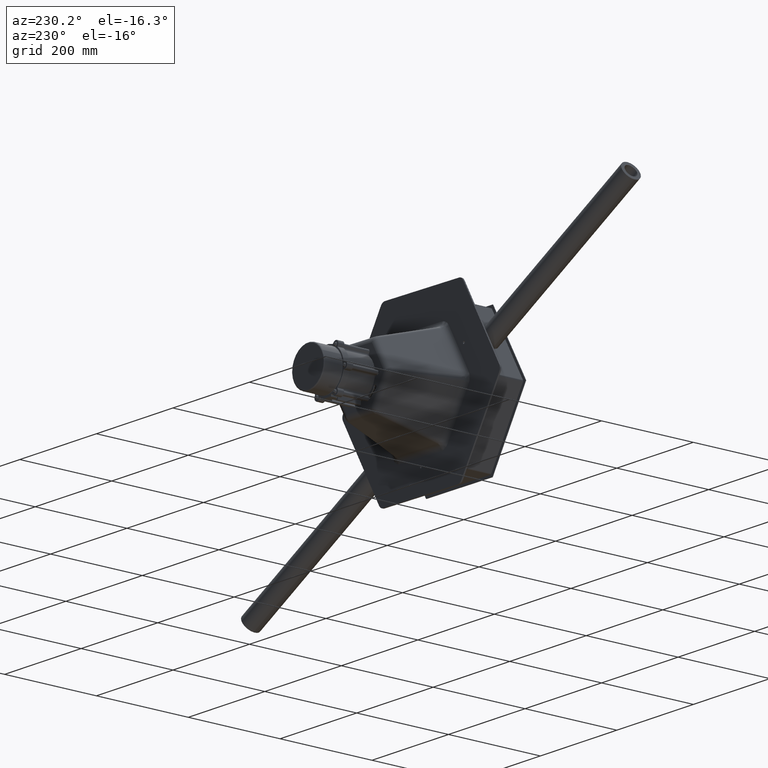
[diagram: clean part render]
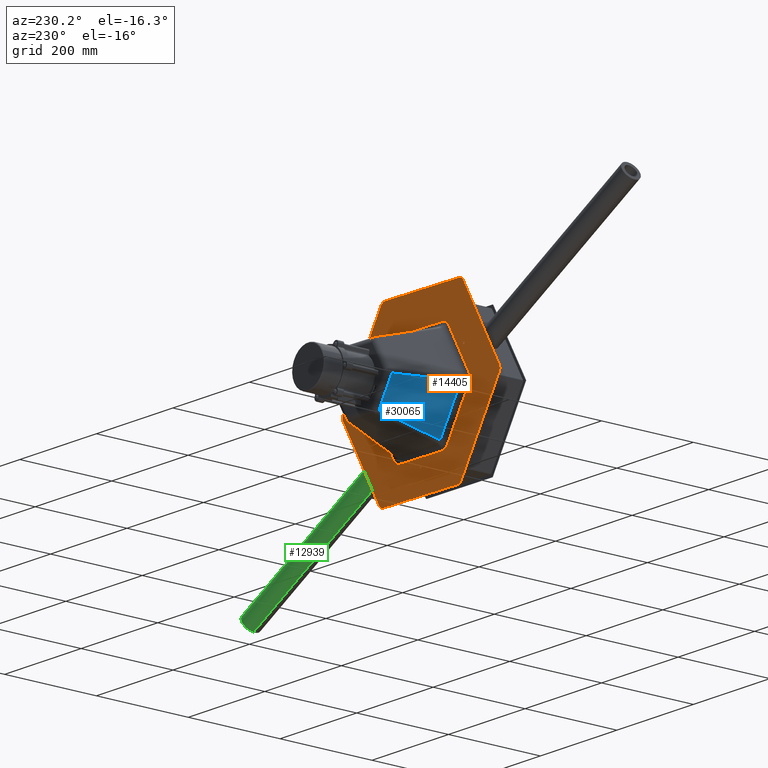
[diagram: same view with three faces highlighted in distinct colors, each labeled with its STEP entity id]
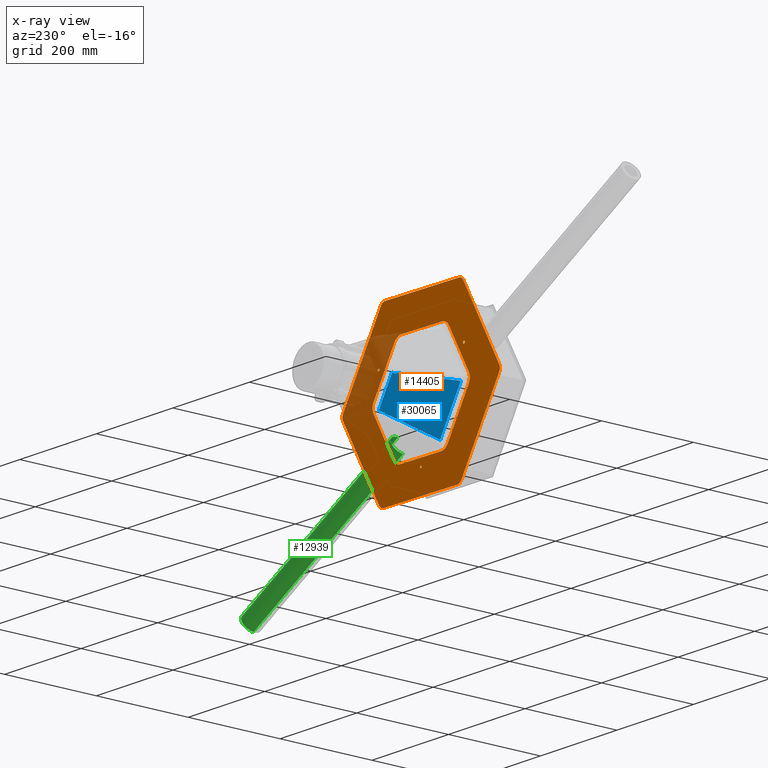
[diagram: x-ray of the same camera — body ghosted, the three highlighted faces saturated]
A machine part, auxiliary view with three faces highlighted in distinct colors.
The next image is the same camera in x-ray (body ghosted, the three faces saturated) — at least one of them is partly hidden behind the body in this view.
Their STEP definitions:

[orange] entity #14405 — the highlighted planar face has unit normal (-0, 1, -0).
#29 = CIRCLE ( 'NONE', #3622, 2.499999999999932943 ) ;
#144 = VERTEX_POINT ( 'NONE', #9268 ) ;
#264 = DIRECTION ( 'NONE',  ( 1.000000000000000000, 0.0000000000000000000, 0.0000000000000000000 ) ) ;
#392 = DIRECTION ( 'NONE',  ( 1.000000000000000000, 0.0000000000000000000, 0.0000000000000000000 ) ) ;
#502 = CARTESIAN_POINT ( 'NONE',  ( -180.0000000000001990, -103.9230484541327257, 3.000000000000002665 ) ) ;
#588 = EDGE_LOOP ( 'NONE', ( #3289, #16788, #16763, #32327, #19123, #15606, #25904, #10068, #16459, #6291, #33176, #12389, #12473, #7153, #3378, #18773, #33509, #33228 ) ) ;
#621 = DIRECTION ( 'NONE',  ( 0.8660254037844387076, -0.5000000000000001110, 7.395570986446982391E-32 ) ) ;
#765 = CIRCLE ( 'NONE', #19125, 12.00000000000001066 ) ;
#818 = VERTEX_POINT ( 'NONE', #18384 ) ;
#905 = DIRECTION ( 'NONE',  ( 1.000000000000000000, 0.0000000000000000000, 0.0000000000000000000 ) ) ;
#910 = CARTESIAN_POINT ( 'NONE',  ( 105.4923940547534897, -69.35442614070201728, 2.999999999999996003 ) ) ;
#1337 = ORIENTED_EDGE ( 'NONE', *, *, #4857, .T. ) ;
#1415 = VERTEX_POINT ( 'NONE', #16205 ) ;
#1423 = VECTOR ( 'NONE', #19962, 1000.000000000000000 ) ;
#1537 = LINE ( 'NONE', #502, #14549 ) ;
#1780 = CARTESIAN_POINT ( 'NONE',  ( -103.4783731976791330, -70.51722162468735178, 3.000000000000002665 ) ) ;
#1828 = EDGE_LOOP ( 'NONE', ( #2680, #29796 ) ) ;
#1853 = CARTESIAN_POINT ( 'NONE',  ( 109.9916431644735155, 63.50370478961835374, 3.000000000000000888 ) ) ;
#2162 =( BOUNDED_CURVE ( )  B_SPLINE_CURVE ( 3, ( #14802, #19885, #17423, #1853 ),
 .UNSPECIFIED., .F., .T. ) 
 B_SPLINE_CURVE_WITH_KNOTS ( ( 4, 4 ),
 ( 5.781736827145353530, 6.283185307179586232 ),
 .UNSPECIFIED. ) 
 CURVE ( )  GEOMETRIC_REPRESENTATION_ITEM ( )  RATIONAL_B_SPLINE_CURVE ( ( 1.000000000000000000, 0.9791553251799451907, 0.9791553251799451907, 1.000000000000000000 ) ) 
 REPRESENTATION_ITEM ( '' )  );
#2202 = CARTESIAN_POINT ( 'NONE',  ( -111.8498174117723067, -60.28525258398089903, 3.000000000000003109 ) ) ;
#2266 = PLANE ( 'NONE',  #29995 ) ;
#2326 = CARTESIAN_POINT ( 'NONE',  ( -112.8088919301162605, -56.68188008710410486, 3.000000000000003109 ) ) ;
#2538 = DIRECTION ( 'NONE',  ( 0.8660254037844387076, -0.4999999999999997224, 6.162975822039148161E-32 ) ) ;
#2680 = ORIENTED_EDGE ( 'NONE', *, *, #32297, .F. ) ;
#2764 = FACE_BOUND ( 'NONE', #6781, .T. ) ;
#2826 = CIRCLE ( 'NONE', #32260, 12.00000000000001066 ) ;
#2845 = EDGE_CURVE ( 'NONE', #17957, #12448, #19441, .T. ) ;
#2980 = VERTEX_POINT ( 'NONE', #22040 ) ;
#3050 = DIRECTION ( 'NONE',  ( -2.465190328815661892E-32, -2.209041646212159523E-31, 1.000000000000000000 ) ) ;
#3076 = CARTESIAN_POINT ( 'NONE',  ( 174.0000000000001421, -107.3871500692704046, 2.999999999999995559 ) ) ;
#3212 = CARTESIAN_POINT ( 'NONE',  ( -109.9916431644736861, 63.50370478961818321, 3.000000000000009770 ) ) ;
#3289 = ORIENTED_EDGE ( 'NONE', *, *, #4262, .T. ) ;
#3378 = ORIENTED_EDGE ( 'NONE', *, *, #16581, .T. ) ;
#3622 = AXIS2_PLACEMENT_3D ( 'NONE', #23094, #7637, #25723 ) ;
#3740 = EDGE_CURVE ( 'NONE', #23818, #26938, #25024, .T. ) ;
#3931 = CARTESIAN_POINT ( 'NONE',  ( 5.999999999999992895, -204.3819952931276305, 3.000000000000002665 ) ) ;
#4205 = EDGE_CURVE ( 'NONE', #12448, #11268, #11321, .T. ) ;
#4262 = EDGE_CURVE ( 'NONE', #33037, #26716, #21770, .T. ) ;
#4267 = ORIENTED_EDGE ( 'NONE', *, *, #21539, .F. ) ;
#4299 = CARTESIAN_POINT ( 'NONE',  ( 180.0000000000001705, 96.99484522385721164, 3.000000000000002665 ) ) ;
#4317 = VERTEX_POINT ( 'NONE', #33306 ) ;
#4339 = CARTESIAN_POINT ( 'NONE',  ( -128.5606159927934016, -0.9905632959438664953, 2.999999999999995559 ) ) ;
#4352 = VECTOR ( 'NONE', #8772, 1000.000000000000114 ) ;
#4449 = VERTEX_POINT ( 'NONE', #31303 ) ;
#4485 = CARTESIAN_POINT ( 'NONE',  ( -180.0000000000001990, 96.99484522385718321, 3.000000000000002665 ) ) ;
#4649 = CARTESIAN_POINT ( 'NONE',  ( -126.0606159927934726, -0.9905632959438662732, 2.999999999999995559 ) ) ;
#4857 = EDGE_CURVE ( 'NONE', #16529, #11893, #29820, .T. ) ;
#5054 = ORIENTED_EDGE ( 'NONE', *, *, #2845, .T. ) ;
#5391 = ORIENTED_EDGE ( 'NONE', *, *, #5571, .T. ) ;
#5463 = CARTESIAN_POINT ( 'NONE',  ( -10.57531631285927531, -124.1548265256773078, 3.000000000000002665 ) ) ;
#5484 = CARTESIAN_POINT ( 'NONE',  ( -131.0606159927933163, -0.9905632959438664953, 2.999999999999995559 ) ) ;
#5571 = EDGE_CURVE ( 'NONE', #11268, #6002, #26947, .T. ) ;
#5603 = DIRECTION ( 'NONE',  ( -2.465190328815661892E-32, -2.209041646212159523E-31, 1.000000000000000000 ) ) ;
#5665 = EDGE_CURVE ( 'NONE', #15814, #10157, #24514, .T. ) ;
#5696 = CARTESIAN_POINT ( 'NONE',  ( 9.330518732437003138, -124.8735107438206029, 3.000000000000002665 ) ) ;
#5746 = CARTESIAN_POINT ( 'NONE',  ( -112.8088919301162321, 52.91892068284658279, 3.000000000000002665 ) ) ;
#5759 = CARTESIAN_POINT ( 'NONE',  ( 6.000000000000039080, 204.3819952931276021, 3.000000000000002665 ) ) ;
#5883 = ORIENTED_EDGE ( 'NONE', *, *, #23514, .T. ) ;
#6002 = VERTEX_POINT ( 'NONE', #4299 ) ;
#6013 = CARTESIAN_POINT ( 'NONE',  ( -109.9916431644736434, -63.50370478961819742, 3.000000000000011546 ) ) ;
#6017 = EDGE_CURVE ( 'NONE', #14531, #27240, #13188, .T. ) ;
#6291 = ORIENTED_EDGE ( 'NONE', *, *, #28834, .T. ) ;
#6455 = LINE ( 'NONE', #18828, #33099 ) ;
#6459 = CARTESIAN_POINT ( 'NONE',  ( 103.4783731976790477, 70.51722162468750810, 3.000000000000009770 ) ) ;
#6604 = LINE ( 'NONE', #13960, #27231 ) ;
#6781 = EDGE_LOOP ( 'NONE', ( #4267, #33470 ) ) ;
#6786 = ORIENTED_EDGE ( 'NONE', *, *, #33357, .T. ) ;
#6916 = ORIENTED_EDGE ( 'NONE', *, *, #27424, .T. ) ;
#6969 = DIRECTION ( 'NONE',  ( 1.000000000000000000, 0.0000000000000000000, 0.0000000000000000000 ) ) ;
#7066 = DIRECTION ( 'NONE',  ( -0.8660254037844387076, 0.4999999999999998335, -4.930380657631319952E-32 ) ) ;
#7153 = ORIENTED_EDGE ( 'NONE', *, *, #30886, .T. ) ;
#7164 = CARTESIAN_POINT ( 'NONE',  ( -105.4923940547535466, 69.35442614070203149, 3.000000000000002665 ) ) ;
#7253 = VECTOR ( 'NONE', #7066, 1000.000000000000114 ) ;
#7302 = EDGE_CURVE ( 'NONE', #26938, #33037, #16199, .T. ) ;
#7637 = DIRECTION ( 'NONE',  ( -2.465190328815661892E-32, -2.209041646212159523E-31, 1.000000000000000000 ) ) ;
#7660 = VERTEX_POINT ( 'NONE', #18220 ) ;
#7722 = LINE ( 'NONE', #12651, #19036 ) ;
#8244 = CARTESIAN_POINT ( 'NONE',  ( 109.9916431644735155, 63.50370478961835374, 3.000000000000000888 ) ) ;
#8323 = VERTEX_POINT ( 'NONE', #13877 ) ;
#8393 = EDGE_LOOP ( 'NONE', ( #1337, #19399, #12047, #24524, #19618, #6916, #5883, #6786, #5054, #29671, #5391, #14122 ) ) ;
#8527 = EDGE_CURVE ( 'NONE', #27240, #14531, #9047, .T. ) ;
#8624 = CARTESIAN_POINT ( 'NONE',  ( 2.496306811062403939E-14, 127.0074095792363096, 3.000000000000000888 ) ) ;
#8663 = AXIS2_PLACEMENT_3D ( 'NONE', #21063, #5603, #23659 ) ;
#8743 = CARTESIAN_POINT ( 'NONE',  ( 10.57531631285926998, 124.1548265256773220, 3.000000000000002665 ) ) ;
#8744 = CARTESIAN_POINT ( 'NONE',  ( 109.9916431644735724, -63.50370478961822585, 2.999999999999999112 ) ) ;
#8772 = DIRECTION ( 'NONE',  ( 0.8660254037844388186, 0.4999999999999997224, -1.479114197289396040E-31 ) ) ;
#8831 = AXIS2_PLACEMENT_3D ( 'NONE', #15254, #14899, #14564 ) ;
#9045 = CARTESIAN_POINT ( 'NONE',  ( 111.8498174117721646, 60.28525258398108377, 2.999999999999995559 ) ) ;
#9047 = CIRCLE ( 'NONE', #21397, 2.499999999999919176 ) ;
#9268 = CARTESIAN_POINT ( 'NONE',  ( -180.0000000000001421, -96.99484522385715479, 3.000000000000009770 ) ) ;
#9377 = EDGE_CURVE ( 'NONE', #9877, #4317, #27863, .T. ) ;
#9631 = EDGE_CURVE ( 'NONE', #818, #8323, #13445, .T. ) ;
#9723 = CARTESIAN_POINT ( 'NONE',  ( -108.1334689171750654, 66.72215699525548871, 3.000000000000002665 ) ) ;
#9877 = VERTEX_POINT ( 'NONE', #12868 ) ;
#9881 = CARTESIAN_POINT ( 'NONE',  ( 66.99258023428303943, -110.8974878807649844, 3.000000000000002665 ) ) ;
#10068 = ORIENTED_EDGE ( 'NONE', *, *, #9377, .T. ) ;
#10092 = EDGE_CURVE ( 'NONE', #31351, #27385, #6455, .T. ) ;
#10157 = VERTEX_POINT ( 'NONE', #11949 ) ;
#10195 = DIRECTION ( 'NONE',  ( 3.697785493223489554E-32, -2.209041646212159523E-31, 1.000000000000000000 ) ) ;
#10326 = CARTESIAN_POINT ( 'NONE',  ( -6.000000000000127010, -204.3819952931277442, 3.000000000000002665 ) ) ;
#10340 = CARTESIAN_POINT ( 'NONE',  ( 63.69974159824990068, 111.8859771665177902, 3.000000000000002665 ) ) ;
#10514 = CARTESIAN_POINT ( 'NONE',  ( 180.0000000000001705, -103.9230484541326121, 2.999999999999995559 ) ) ;
#10540 = VECTOR ( 'NONE', #25072, 1000.000000000000000 ) ;
#10592 = EDGE_CURVE ( 'NONE', #4317, #17183, #27888, .T. ) ;
#11253 = CARTESIAN_POINT ( 'NONE',  ( -7.316497875362687253, -126.0363062278060369, 2.999999999999995559 ) ) ;
#11268 = VERTEX_POINT ( 'NONE', #19942 ) ;
#11321 = CIRCLE ( 'NONE', #8831, 12.00000000000001066 ) ;
#11614 = CIRCLE ( 'NONE', #32516, 2.499999999999932943 ) ;
#11728 = CARTESIAN_POINT ( 'NONE',  ( 7.316497875362695247, 126.0363062278060937, 2.999999999999995559 ) ) ;
#11893 = VERTEX_POINT ( 'NONE', #5759 ) ;
#11949 = CARTESIAN_POINT ( 'NONE',  ( 61.19974159824987225, 111.8859771665177902, 3.000000000000002665 ) ) ;
#12047 = ORIENTED_EDGE ( 'NONE', *, *, #10092, .T. ) ;
#12152 = DIRECTION ( 'NONE',  ( -2.465190328815661892E-32, -2.209041646212159523E-31, 1.000000000000000000 ) ) ;
#12389 = ORIENTED_EDGE ( 'NONE', *, *, #26727, .T. ) ;
#12448 = VERTEX_POINT ( 'NONE', #3076 ) ;
#12473 = ORIENTED_EDGE ( 'NONE', *, *, #25925, .T. ) ;
#12477 = EDGE_CURVE ( 'NONE', #7660, #16814, #17947, .T. ) ;
#12651 = CARTESIAN_POINT ( 'NONE',  ( -180.0000000000001990, 103.9230484541326689, 3.000000000000002665 ) ) ;
#12868 = CARTESIAN_POINT ( 'NONE',  ( 10.57531631285922025, -124.1548265256772225, 3.000000000000002665 ) ) ;
#12911 = DIRECTION ( 'NONE',  ( 1.000000000000000000, 0.0000000000000000000, 0.0000000000000000000 ) ) ;
#13100 = CARTESIAN_POINT ( 'NONE',  ( 112.8088919301160473, 52.91892068284673911, 3.000000000000002665 ) ) ;
#13147 = CARTESIAN_POINT ( 'NONE',  ( -1.701094551284991471E-14, -127.0074095792362527, 3.000000000000000888 ) ) ;
#13166 = CARTESIAN_POINT ( 'NONE',  ( -174.0000000000002274, 107.3871500692704188, 3.000000000000009770 ) ) ;
#13188 = CIRCLE ( 'NONE', #31976, 2.499999999999919176 ) ;
#13444 = DIRECTION ( 'NONE',  ( -2.465190328815661892E-32, -2.209041646212159523E-31, 1.000000000000000000 ) ) ;
#13445 =( BOUNDED_CURVE ( )  B_SPLINE_CURVE ( 3, ( #13891, #29364, #910, #19079 ),
 .UNSPECIFIED., .F., .F. ) 
 B_SPLINE_CURVE_WITH_KNOTS ( ( 4, 4 ),
 ( 0.0000000000000000000, 0.5014484800342289272 ),
 .UNSPECIFIED. ) 
 CURVE ( )  GEOMETRIC_REPRESENTATION_ITEM ( )  RATIONAL_B_SPLINE_CURVE ( ( 1.000000000000000000, 0.9791553251799456348, 0.9791553251799456348, 1.000000000000000000 ) ) 
 REPRESENTATION_ITEM ( '' )  );
#13649 = CARTESIAN_POINT ( 'NONE',  ( -109.9916431644736434, -63.50370478961819742, 3.000000000000011546 ) ) ;
#13864 = VECTOR ( 'NONE', #18367, 1000.000000000000227 ) ;
#13877 = CARTESIAN_POINT ( 'NONE',  ( 102.2335756172569177, -71.23590584283073213, 3.000000000000002665 ) ) ;
#13891 = CARTESIAN_POINT ( 'NONE',  ( 109.9916431644735724, -63.50370478961822585, 2.999999999999999112 ) ) ;
#13947 = EDGE_CURVE ( 'NONE', #30623, #144, #7722, .T. ) ;
#13960 = CARTESIAN_POINT ( 'NONE',  ( -112.8088919301162321, 54.35628911913330796, 3.000000000000002665 ) ) ;
#14122 = ORIENTED_EDGE ( 'NONE', *, *, #20172, .T. ) ;
#14204 = CARTESIAN_POINT ( 'NONE',  ( 112.8088919301160473, 52.91892068284673911, 3.000000000000002665 ) ) ;
#14405 = ADVANCED_FACE ( 'NONE', ( #29508, #16584, #2764, #22624, #15777 ), #2266, .T. ) ;
#14447 =( BOUNDED_CURVE ( )  B_SPLINE_CURVE ( 3, ( #33310, #2202, #2326, #20455 ),
 .UNSPECIFIED., .F., .F. ) 
 B_SPLINE_CURVE_WITH_KNOTS ( ( 4, 4 ),
 ( 0.0000000000000000000, 0.5014484800342327020 ),
 .UNSPECIFIED. ) 
 CURVE ( )  GEOMETRIC_REPRESENTATION_ITEM ( )  RATIONAL_B_SPLINE_CURVE ( ( 1.000000000000000000, 0.9791553251799451907, 0.9791553251799451907, 1.000000000000000000 ) ) 
 REPRESENTATION_ITEM ( '' )  );
#14531 = VERTEX_POINT ( 'NONE', #5484 ) ;
#14549 = VECTOR ( 'NONE', #621, 999.9999999999998863 ) ;
#14564 = DIRECTION ( 'NONE',  ( 1.000000000000000000, 0.0000000000000000000, 0.0000000000000000000 ) ) ;
#14659 = DIRECTION ( 'NONE',  ( -2.465190328815661892E-32, -2.209041646212159523E-31, 1.000000000000000000 ) ) ;
#14802 = CARTESIAN_POINT ( 'NONE',  ( 102.2335756172567756, 71.23590584283090266, 3.000000000000009770 ) ) ;
#14898 = VECTOR ( 'NONE', #2538, 1000.000000000000114 ) ;
#14899 = DIRECTION ( 'NONE',  ( -2.465190328815661892E-32, -2.209041646212159523E-31, 1.000000000000000000 ) ) ;
#14922 = VERTEX_POINT ( 'NONE', #22726 ) ;
#15156 = CARTESIAN_POINT ( 'NONE',  ( 102.2335756172567756, 71.23590584283090266, 3.000000000000009770 ) ) ;
#15254 = CARTESIAN_POINT ( 'NONE',  ( 168.0000000000001990, -96.99484522385712637, 2.999999999999995559 ) ) ;
#15539 = VERTEX_POINT ( 'NONE', #9881 ) ;
#15606 = ORIENTED_EDGE ( 'NONE', *, *, #9631, .T. ) ;
#15632 = VERTEX_POINT ( 'NONE', #10326 ) ;
#15761 = VERTEX_POINT ( 'NONE', #8244 ) ;
#15777 = FACE_OUTER_BOUND ( 'NONE', #8393, .T. ) ;
#15814 = VERTEX_POINT ( 'NONE', #19186 ) ;
#15851 = DIRECTION ( 'NONE',  ( -2.465190328815661892E-32, -2.209041646212159523E-31, 1.000000000000000000 ) ) ;
#15982 = DIRECTION ( 'NONE',  ( -2.465190328815661892E-32, -2.209041646212159523E-31, 1.000000000000000000 ) ) ;
#16199 =( BOUNDED_CURVE ( )  B_SPLINE_CURVE ( 3, ( #32105, #21932, #11728, #29738 ),
 .UNSPECIFIED., .F., .T. ) 
 B_SPLINE_CURVE_WITH_KNOTS ( ( 4, 4 ),
 ( 5.252536211965179235E-32, 0.5014484800342327020 ),
 .UNSPECIFIED. ) 
 CURVE ( )  GEOMETRIC_REPRESENTATION_ITEM ( )  RATIONAL_B_SPLINE_CURVE ( ( 1.000000000000000000, 0.9791553251799451907, 0.9791553251799451907, 1.000000000000000000 ) ) 
 REPRESENTATION_ITEM ( '' )  );
#16205 = CARTESIAN_POINT ( 'NONE',  ( 112.8088919301161752, -52.91892068284654016, 3.000000000000002665 ) ) ;
#16281 = EDGE_CURVE ( 'NONE', #11893, #31351, #21668, .T. ) ;
#16400 = CARTESIAN_POINT ( 'NONE',  ( 112.8088919301161752, -52.91892068284654016, 3.000000000000002665 ) ) ;
#16459 = ORIENTED_EDGE ( 'NONE', *, *, #10592, .T. ) ;
#16491 = DIRECTION ( 'NONE',  ( -2.465190328815661892E-32, -2.209041646212159523E-31, 1.000000000000000000 ) ) ;
#16505 = CARTESIAN_POINT ( 'NONE',  ( -109.9916431644736861, 63.50370478961818321, 3.000000000000009770 ) ) ;
#16529 = VERTEX_POINT ( 'NONE', #24913 ) ;
#16581 = EDGE_CURVE ( 'NONE', #17890, #4449, #24525, .T. ) ;
#16584 = FACE_BOUND ( 'NONE', #17284, .T. ) ;
#16763 = ORIENTED_EDGE ( 'NONE', *, *, #28683, .T. ) ;
#16788 = ORIENTED_EDGE ( 'NONE', *, *, #23866, .T. ) ;
#16814 = VERTEX_POINT ( 'NONE', #6013 ) ;
#17183 = VERTEX_POINT ( 'NONE', #5463 ) ;
#17284 = EDGE_LOOP ( 'NONE', ( #26548, #30846 ) ) ;
#17354 = LINE ( 'NONE', #32396, #10540 ) ;
#17423 = CARTESIAN_POINT ( 'NONE',  ( 108.1334689171748948, 66.72215699525563082, 2.999999999999995559 ) ) ;
#17890 = VERTEX_POINT ( 'NONE', #16505 ) ;
#17947 =( BOUNDED_CURVE ( )  B_SPLINE_CURVE ( 3, ( #31580, #21299, #29106, #13649 ),
 .UNSPECIFIED., .F., .F. ) 
 B_SPLINE_CURVE_WITH_KNOTS ( ( 4, 4 ),
 ( 5.781736827145349089, 6.283185307179586232 ),
 .UNSPECIFIED. ) 
 CURVE ( )  GEOMETRIC_REPRESENTATION_ITEM ( )  RATIONAL_B_SPLINE_CURVE ( ( 1.000000000000000000, 0.9791553251799447466, 0.9791553251799447466, 1.000000000000000000 ) ) 
 REPRESENTATION_ITEM ( '' )  );
#17957 = VERTEX_POINT ( 'NONE', #3931 ) ;
#18166 = CARTESIAN_POINT ( 'NONE',  ( -6.000000000000012434, 204.3819952931277157, 2.999999999999995559 ) ) ;
#18220 = CARTESIAN_POINT ( 'NONE',  ( -102.2335756172568608, -71.23590584283076055, 3.000000000000002665 ) ) ;
#18367 = DIRECTION ( 'NONE',  ( -0.8660254037844385966, -0.4999999999999998890, 1.479114197289395821E-31 ) ) ;
#18384 = CARTESIAN_POINT ( 'NONE',  ( 109.9916431644735724, -63.50370478961822585, 2.999999999999999112 ) ) ;
#18599 = CARTESIAN_POINT ( 'NONE',  ( 63.69974159824990068, 111.8859771665177902, 3.000000000000002665 ) ) ;
#18750 = CARTESIAN_POINT ( 'NONE',  ( -111.8498174117723210, 60.28525258398091324, 3.000000000000002665 ) ) ;
#18773 = ORIENTED_EDGE ( 'NONE', *, *, #24791, .T. ) ;
#18828 = CARTESIAN_POINT ( 'NONE',  ( 1.214306433183764966E-14, 207.8460969082653946, 3.000000000000002665 ) ) ;
#18875 = EDGE_CURVE ( 'NONE', #8323, #9877, #20713, .T. ) ;
#19036 = VECTOR ( 'NONE', #20419, 1000.000000000000000 ) ;
#19079 = CARTESIAN_POINT ( 'NONE',  ( 102.2335756172569177, -71.23590584283073213, 3.000000000000002665 ) ) ;
#19123 = ORIENTED_EDGE ( 'NONE', *, *, #19482, .T. ) ;
#19125 = AXIS2_PLACEMENT_3D ( 'NONE', #30133, #14659, #32727 ) ;
#19186 = CARTESIAN_POINT ( 'NONE',  ( 66.19974159824991489, 111.8859771665177902, 3.000000000000002665 ) ) ;
#19266 = CARTESIAN_POINT ( 'NONE',  ( 109.9916431644735155, 63.50370478961835374, 3.000000000000000888 ) ) ;
#19328 = EDGE_CURVE ( 'NONE', #15539, #14922, #11614, .T. ) ;
#19399 = ORIENTED_EDGE ( 'NONE', *, *, #16281, .T. ) ;
#19441 = LINE ( 'NONE', #28075, #25517 ) ;
#19482 = EDGE_CURVE ( 'NONE', #1415, #818, #25519, .T. ) ;
#19618 = ORIENTED_EDGE ( 'NONE', *, *, #13947, .T. ) ;
#19778 = CARTESIAN_POINT ( 'NONE',  ( -10.57531631285925400, 124.1548265256772510, 2.999999999999995559 ) ) ;
#19885 = CARTESIAN_POINT ( 'NONE',  ( 105.4923940547533903, 69.35442614070217360, 2.999999999999995559 ) ) ;
#19942 = CARTESIAN_POINT ( 'NONE',  ( 180.0000000000001705, -96.99484522385715479, 3.000000000000002665 ) ) ;
#19962 = DIRECTION ( 'NONE',  ( -0.8660254037844385966, 0.5000000000000001110, -8.628166150854811148E-32 ) ) ;
#20172 = EDGE_CURVE ( 'NONE', #6002, #16529, #30895, .T. ) ;
#20194 = CARTESIAN_POINT ( 'NONE',  ( 180.0000000000001705, 103.9230484541326973, 2.999999999999995559 ) ) ;
#20379 = VERTEX_POINT ( 'NONE', #13100 ) ;
#20419 = DIRECTION ( 'NONE',  ( 0.0000000000000000000, -1.000000000000000000, 2.210967576156545446E-31 ) ) ;
#20455 = CARTESIAN_POINT ( 'NONE',  ( -112.8088919301161894, -52.91892068284656858, 3.000000000000002665 ) ) ;
#20713 = LINE ( 'NONE', #5696, #13864 ) ;
#20862 = VECTOR ( 'NONE', #31112, 1000.000000000000000 ) ;
#21063 = CARTESIAN_POINT ( 'NONE',  ( 8.673617379884035472E-15, 193.9896904477144233, 3.000000000000002665 ) ) ;
#21160 = DIRECTION ( 'NONE',  ( 1.000000000000000000, 0.0000000000000000000, 0.0000000000000000000 ) ) ;
#21294 = AXIS2_PLACEMENT_3D ( 'NONE', #31429, #15982, #392 ) ;
#21299 = CARTESIAN_POINT ( 'NONE',  ( -105.4923940547535040, -69.35442614070204570, 3.000000000000002665 ) ) ;
#21397 = AXIS2_PLACEMENT_3D ( 'NONE', #4339, #22433, #6969 ) ;
#21468 = CARTESIAN_POINT ( 'NONE',  ( -3.716348494597264462, -127.0074095792362527, 2.999999999999995559 ) ) ;
#21539 = EDGE_CURVE ( 'NONE', #10157, #15814, #22314, .T. ) ;
#21668 = CIRCLE ( 'NONE', #8663, 12.00000000000001066 ) ;
#21770 = LINE ( 'NONE', #6459, #14898 ) ;
#21875 = CARTESIAN_POINT ( 'NONE',  ( -112.8088919301162321, 52.91892068284658279, 3.000000000000002665 ) ) ;
#21932 = CARTESIAN_POINT ( 'NONE',  ( 3.716348494597272900, 127.0074095792363096, 2.999999999999995559 ) ) ;
#22040 = CARTESIAN_POINT ( 'NONE',  ( -174.0000000000001137, -107.3871500692704615, 3.000000000000002665 ) ) ;
#22314 = CIRCLE ( 'NONE', #27841, 2.500000000000015987 ) ;
#22433 = DIRECTION ( 'NONE',  ( -2.465190328815661892E-32, -2.209041646212159523E-31, 1.000000000000000000 ) ) ;
#22624 = FACE_BOUND ( 'NONE', #588, .T. ) ;
#22726 = CARTESIAN_POINT ( 'NONE',  ( 61.99258023428317443, -110.8974878807649844, 3.000000000000002665 ) ) ;
#23094 = CARTESIAN_POINT ( 'NONE',  ( 64.49258023428309627, -110.8974878807649844, 3.000000000000002665 ) ) ;
#23391 = CARTESIAN_POINT ( 'NONE',  ( 10.57531631285922025, -124.1548265256772225, 3.000000000000002665 ) ) ;
#23514 = EDGE_CURVE ( 'NONE', #2980, #15632, #1537, .T. ) ;
#23659 = DIRECTION ( 'NONE',  ( 1.000000000000000000, 0.0000000000000000000, 0.0000000000000000000 ) ) ;
#23818 = VERTEX_POINT ( 'NONE', #19778 ) ;
#23866 = EDGE_CURVE ( 'NONE', #26716, #15761, #2162, .T. ) ;
#24085 = CARTESIAN_POINT ( 'NONE',  ( 2.496306811062403939E-14, 127.0074095792363096, 3.000000000000000888 ) ) ;
#24184 = CARTESIAN_POINT ( 'NONE',  ( 111.8498174117722357, -60.28525258398092035, 2.999999999999995559 ) ) ;
#24212 = CARTESIAN_POINT ( 'NONE',  ( -3.716348494597244922, 127.0074095792363096, 2.999999999999995559 ) ) ;
#24303 = EDGE_CURVE ( 'NONE', #20379, #1415, #17354, .T. ) ;
#24514 = CIRCLE ( 'NONE', #29172, 2.500000000000015987 ) ;
#24524 = ORIENTED_EDGE ( 'NONE', *, *, #27127, .T. ) ;
#24525 =( BOUNDED_CURVE ( )  B_SPLINE_CURVE ( 3, ( #32884, #9723, #7164, #25242 ),
 .UNSPECIFIED., .F., .T. ) 
 B_SPLINE_CURVE_WITH_KNOTS ( ( 4, 4 ),
 ( 7.885106708985473010E-17, 0.5014484800342339232 ),
 .UNSPECIFIED. ) 
 CURVE ( )  GEOMETRIC_REPRESENTATION_ITEM ( )  RATIONAL_B_SPLINE_CURVE ( ( 1.000000000000000000, 0.9791553251799449686, 0.9791553251799449686, 1.000000000000000000 ) ) 
 REPRESENTATION_ITEM ( '' )  );
#24555 = CARTESIAN_POINT ( 'NONE',  ( -7.316497875362698800, 126.0363062278060369, 2.999999999999995559 ) ) ;
#24791 = EDGE_CURVE ( 'NONE', #4449, #23818, #25016, .T. ) ;
#24913 = CARTESIAN_POINT ( 'NONE',  ( 174.0000000000001421, 107.3871500692704473, 2.999999999999995559 ) ) ;
#25016 = LINE ( 'NONE', #26827, #4352 ) ;
#25024 =( BOUNDED_CURVE ( )  B_SPLINE_CURVE ( 3, ( #25998, #24555, #24212, #24085 ),
 .UNSPECIFIED., .F., .T. ) 
 B_SPLINE_CURVE_WITH_KNOTS ( ( 4, 4 ),
 ( 5.781736827145349977, 6.283185307179586232 ),
 .UNSPECIFIED. ) 
 CURVE ( )  GEOMETRIC_REPRESENTATION_ITEM ( )  RATIONAL_B_SPLINE_CURVE ( ( 1.000000000000000000, 0.9791553251799448576, 0.9791553251799448576, 1.000000000000000000 ) ) 
 REPRESENTATION_ITEM ( '' )  );
#25072 = DIRECTION ( 'NONE',  ( 9.471590178833358847E-16, -1.000000000000000000, 2.039559811106081017E-31 ) ) ;
#25242 = CARTESIAN_POINT ( 'NONE',  ( -102.2335756172569603, 71.23590584283076055, 2.999999999999995559 ) ) ;
#25517 = VECTOR ( 'NONE', #27238, 1000.000000000000000 ) ;
#25519 =( BOUNDED_CURVE ( )  B_SPLINE_CURVE ( 3, ( #16400, #26691, #24184, #8744 ),
 .UNSPECIFIED., .F., .T. ) 
 B_SPLINE_CURVE_WITH_KNOTS ( ( 4, 4 ),
 ( 5.781736827145348201, 6.283185307179586232 ),
 .UNSPECIFIED. ) 
 CURVE ( )  GEOMETRIC_REPRESENTATION_ITEM ( )  RATIONAL_B_SPLINE_CURVE ( ( 1.000000000000000000, 0.9791553251799447466, 0.9791553251799447466, 1.000000000000000000 ) ) 
 REPRESENTATION_ITEM ( '' )  );
#25610 = CARTESIAN_POINT ( 'NONE',  ( 0.0000000000000000000, 0.0000000000000000000, 3.000000000000002665 ) ) ;
#25723 = DIRECTION ( 'NONE',  ( 1.000000000000000000, 0.0000000000000000000, 0.0000000000000000000 ) ) ;
#25904 = ORIENTED_EDGE ( 'NONE', *, *, #18875, .T. ) ;
#25925 = EDGE_CURVE ( 'NONE', #32573, #31025, #6604, .T. ) ;
#25998 = CARTESIAN_POINT ( 'NONE',  ( -10.57531631285925400, 124.1548265256772510, 2.999999999999995559 ) ) ;
#26015 = CARTESIAN_POINT ( 'NONE',  ( 7.316497875362669490, -126.0363062278060085, 2.999999999999995559 ) ) ;
#26264 = LINE ( 'NONE', #1780, #7253 ) ;
#26548 = ORIENTED_EDGE ( 'NONE', *, *, #6017, .F. ) ;
#26635 = DIRECTION ( 'NONE',  ( -0.8660254037844385966, -0.5000000000000001110, 1.848892746611744448E-31 ) ) ;
#26691 = CARTESIAN_POINT ( 'NONE',  ( 112.8088919301161610, -56.68188008710409065, 2.999999999999995559 ) ) ;
#26716 = VERTEX_POINT ( 'NONE', #15156 ) ;
#26727 = EDGE_CURVE ( 'NONE', #16814, #32573, #14447, .T. ) ;
#26827 = CARTESIAN_POINT ( 'NONE',  ( -9.330518732437006690, 124.8735107438206740, 2.999999999999995559 ) ) ;
#26938 = VERTEX_POINT ( 'NONE', #8624 ) ;
#26947 = LINE ( 'NONE', #10514, #20862 ) ;
#27127 = EDGE_CURVE ( 'NONE', #27385, #30623, #765, .T. ) ;
#27231 = VECTOR ( 'NONE', #29448, 1000.000000000000000 ) ;
#27238 = DIRECTION ( 'NONE',  ( 0.8660254037844385966, 0.5000000000000001110, -1.479114197289395821E-31 ) ) ;
#27240 = VERTEX_POINT ( 'NONE', #4649 ) ;
#27385 = VERTEX_POINT ( 'NONE', #13166 ) ;
#27424 = EDGE_CURVE ( 'NONE', #144, #2980, #29928, .T. ) ;
#27607 = CARTESIAN_POINT ( 'NONE',  ( -128.5606159927934016, -0.9905632959438664953, 2.999999999999995559 ) ) ;
#27841 = AXIS2_PLACEMENT_3D ( 'NONE', #10340, #28371, #12911 ) ;
#27863 =( BOUNDED_CURVE ( )  B_SPLINE_CURVE ( 3, ( #23391, #26015, #28617, #13147 ),
 .UNSPECIFIED., .F., .F. ) 
 B_SPLINE_CURVE_WITH_KNOTS ( ( 4, 4 ),
 ( 5.781736827145352642, 6.283185307179586232 ),
 .UNSPECIFIED. ) 
 CURVE ( )  GEOMETRIC_REPRESENTATION_ITEM ( )  RATIONAL_B_SPLINE_CURVE ( ( 1.000000000000000000, 0.9791553251799449686, 0.9791553251799449686, 1.000000000000000000 ) ) 
 REPRESENTATION_ITEM ( '' )  );
#27888 =( BOUNDED_CURVE ( )  B_SPLINE_CURVE ( 3, ( #29059, #21468, #11253, #29282 ),
 .UNSPECIFIED., .F., .F. ) 
 B_SPLINE_CURVE_WITH_KNOTS ( ( 4, 4 ),
 ( 1.400676323190714098E-31, 0.5014484800342327020 ),
 .UNSPECIFIED. ) 
 CURVE ( )  GEOMETRIC_REPRESENTATION_ITEM ( )  RATIONAL_B_SPLINE_CURVE ( ( 1.000000000000000000, 0.9791553251799451907, 0.9791553251799451907, 1.000000000000000000 ) ) 
 REPRESENTATION_ITEM ( '' )  );
#28075 = CARTESIAN_POINT ( 'NONE',  ( -3.469446951953614189E-14, -207.8460969082654231, 3.000000000000002665 ) ) ;
#28222 = DIRECTION ( 'NONE',  ( 1.000000000000000000, 0.0000000000000000000, -3.697785493223489554E-32 ) ) ;
#28371 = DIRECTION ( 'NONE',  ( -2.465190328815661892E-32, -2.209041646212159523E-31, 1.000000000000000000 ) ) ;
#28617 = CARTESIAN_POINT ( 'NONE',  ( 3.716348494597233820, -127.0074095792362527, 2.999999999999995559 ) ) ;
#28683 = EDGE_CURVE ( 'NONE', #15761, #20379, #33055, .T. ) ;
#28834 = EDGE_CURVE ( 'NONE', #17183, #7660, #26264, .T. ) ;
#28894 = CARTESIAN_POINT ( 'NONE',  ( -1.734723475976807094E-14, -193.9896904477143948, 3.000000000000009770 ) ) ;
#29027 = CARTESIAN_POINT ( 'NONE',  ( -112.8088919301162463, 56.68188008710411907, 3.000000000000002665 ) ) ;
#29059 = CARTESIAN_POINT ( 'NONE',  ( -1.701094551284991471E-14, -127.0074095792362527, 3.000000000000000888 ) ) ;
#29106 = CARTESIAN_POINT ( 'NONE',  ( -108.1334689171750227, -66.72215699525546029, 3.000000000000002665 ) ) ;
#29172 = AXIS2_PLACEMENT_3D ( 'NONE', #18599, #3050, #21160 ) ;
#29282 = CARTESIAN_POINT ( 'NONE',  ( -10.57531631285927531, -124.1548265256773078, 3.000000000000002665 ) ) ;
#29364 = CARTESIAN_POINT ( 'NONE',  ( 108.1334689171749659, -66.72215699525547450, 2.999999999999996003 ) ) ;
#29424 = CARTESIAN_POINT ( 'NONE',  ( -112.8088919301161894, -52.91892068284656858, 3.000000000000002665 ) ) ;
#29448 = DIRECTION ( 'NONE',  ( -4.735795089416679423E-16, 1.000000000000000000, -2.863857827303817086E-31 ) ) ;
#29508 = FACE_BOUND ( 'NONE', #1828, .T. ) ;
#29660 = CARTESIAN_POINT ( 'NONE',  ( 112.8088919301160900, 56.68188008710428960, 2.999999999999995559 ) ) ;
#29671 = ORIENTED_EDGE ( 'NONE', *, *, #4205, .T. ) ;
#29738 = CARTESIAN_POINT ( 'NONE',  ( 10.57531631285926998, 124.1548265256773220, 3.000000000000002665 ) ) ;
#29796 = ORIENTED_EDGE ( 'NONE', *, *, #19328, .F. ) ;
#29797 =( BOUNDED_CURVE ( )  B_SPLINE_CURVE ( 3, ( #5746, #29027, #18750, #3212 ),
 .UNSPECIFIED., .F., .T. ) 
 B_SPLINE_CURVE_WITH_KNOTS ( ( 4, 4 ),
 ( 5.781736827145351754, 6.283185307179586232 ),
 .UNSPECIFIED. ) 
 CURVE ( )  GEOMETRIC_REPRESENTATION_ITEM ( )  RATIONAL_B_SPLINE_CURVE ( ( 1.000000000000000000, 0.9791553251799449686, 0.9791553251799449686, 1.000000000000000000 ) ) 
 REPRESENTATION_ITEM ( '' )  );
#29820 = LINE ( 'NONE', #20194, #1423 ) ;
#29928 = CIRCLE ( 'NONE', #21294, 12.00000000000001066 ) ;
#29951 = AXIS2_PLACEMENT_3D ( 'NONE', #31945, #16491, #905 ) ;
#29995 = AXIS2_PLACEMENT_3D ( 'NONE', #25610, #10195, #28222 ) ;
#30133 = CARTESIAN_POINT ( 'NONE',  ( -168.0000000000001705, 96.99484522385718321, 3.000000000000002665 ) ) ;
#30184 = DIRECTION ( 'NONE',  ( 1.000000000000000000, 0.0000000000000000000, 0.0000000000000000000 ) ) ;
#30623 = VERTEX_POINT ( 'NONE', #4485 ) ;
#30846 = ORIENTED_EDGE ( 'NONE', *, *, #8527, .F. ) ;
#30886 = EDGE_CURVE ( 'NONE', #31025, #17890, #29797, .T. ) ;
#30895 = CIRCLE ( 'NONE', #29951, 12.00000000000001066 ) ;
#31025 = VERTEX_POINT ( 'NONE', #21875 ) ;
#31112 = DIRECTION ( 'NONE',  ( 0.0000000000000000000, 1.000000000000000000, -2.210967576156545008E-31 ) ) ;
#31296 = CARTESIAN_POINT ( 'NONE',  ( 64.49258023428309627, -110.8974878807649844, 3.000000000000002665 ) ) ;
#31303 = CARTESIAN_POINT ( 'NONE',  ( -102.2335756172569603, 71.23590584283076055, 2.999999999999995559 ) ) ;
#31351 = VERTEX_POINT ( 'NONE', #18166 ) ;
#31429 = CARTESIAN_POINT ( 'NONE',  ( -168.0000000000001137, -96.99484522385724006, 3.000000000000009770 ) ) ;
#31482 = DIRECTION ( 'NONE',  ( 1.000000000000000000, 0.0000000000000000000, 0.0000000000000000000 ) ) ;
#31580 = CARTESIAN_POINT ( 'NONE',  ( -102.2335756172568608, -71.23590584283076055, 3.000000000000002665 ) ) ;
#31945 = CARTESIAN_POINT ( 'NONE',  ( 168.0000000000001421, 96.99484522385721164, 3.000000000000002665 ) ) ;
#31976 = AXIS2_PLACEMENT_3D ( 'NONE', #27607, #12152, #30184 ) ;
#32105 = CARTESIAN_POINT ( 'NONE',  ( 2.496306811062403939E-14, 127.0074095792363096, 3.000000000000000888 ) ) ;
#32260 = AXIS2_PLACEMENT_3D ( 'NONE', #28894, #13444, #31482 ) ;
#32297 = EDGE_CURVE ( 'NONE', #14922, #15539, #29, .T. ) ;
#32327 = ORIENTED_EDGE ( 'NONE', *, *, #24303, .T. ) ;
#32396 = CARTESIAN_POINT ( 'NONE',  ( 112.8088919301161752, -54.35628911913325823, 3.000000000000002665 ) ) ;
#32516 = AXIS2_PLACEMENT_3D ( 'NONE', #31296, #15851, #264 ) ;
#32573 = VERTEX_POINT ( 'NONE', #29424 ) ;
#32727 = DIRECTION ( 'NONE',  ( 1.000000000000000000, 0.0000000000000000000, 0.0000000000000000000 ) ) ;
#32884 = CARTESIAN_POINT ( 'NONE',  ( -109.9916431644736861, 63.50370478961818321, 3.000000000000009770 ) ) ;
#33037 = VERTEX_POINT ( 'NONE', #8743 ) ;
#33055 =( BOUNDED_CURVE ( )  B_SPLINE_CURVE ( 3, ( #19266, #9045, #29660, #14204 ),
 .UNSPECIFIED., .F., .T. ) 
 B_SPLINE_CURVE_WITH_KNOTS ( ( 4, 4 ),
 ( 0.0000000000000000000, 0.5014484800342345894 ),
 .UNSPECIFIED. ) 
 CURVE ( )  GEOMETRIC_REPRESENTATION_ITEM ( )  RATIONAL_B_SPLINE_CURVE ( ( 1.000000000000000000, 0.9791553251799449686, 0.9791553251799449686, 1.000000000000000000 ) ) 
 REPRESENTATION_ITEM ( '' )  );
#33099 = VECTOR ( 'NONE', #26635, 1000.000000000000000 ) ;
#33176 = ORIENTED_EDGE ( 'NONE', *, *, #12477, .T. ) ;
#33228 = ORIENTED_EDGE ( 'NONE', *, *, #7302, .T. ) ;
#33306 = CARTESIAN_POINT ( 'NONE',  ( -1.701094551284991471E-14, -127.0074095792362527, 3.000000000000000888 ) ) ;
#33310 = CARTESIAN_POINT ( 'NONE',  ( -109.9916431644736434, -63.50370478961819742, 3.000000000000011546 ) ) ;
#33357 = EDGE_CURVE ( 'NONE', #15632, #17957, #2826, .T. ) ;
#33470 = ORIENTED_EDGE ( 'NONE', *, *, #5665, .F. ) ;
#33509 = ORIENTED_EDGE ( 'NONE', *, *, #3740, .T. ) ;

[blue] entity #30065 — the highlighted planar face has unit normal (-0.8263, 0.2752, -0.4914).
#2279 = CARTESIAN_POINT ( 'NONE',  ( -4.806961960390595756, -75.29408252217592690, 129.3021738684422246 ) ) ;
#3625 = LINE ( 'NONE', #22414, #9796 ) ;
#4089 = DIRECTION ( 'NONE',  ( -0.4806961960390563893, -0.8325902345447353525, 0.2751811557035178102 ) ) ;
#5313 = DIRECTION ( 'NONE',  ( -0.2717725502388413927, -0.1569079550387464661, -0.9494838464040530335 ) ) ;
#5347 = VERTEX_POINT ( 'NONE', #20404 ) ;
#5528 = ORIENTED_EDGE ( 'NONE', *, *, #22122, .T. ) ;
#5768 = LINE ( 'NONE', #27483, #20315 ) ;
#5978 = DIRECTION ( 'NONE',  ( 0.8660254037844387076, -0.5000000000000001110, 1.330299363687811693E-17 ) ) ;
#7665 = EDGE_CURVE ( 'NONE', #5347, #7679, #12714, .T. ) ;
#7679 = VERTEX_POINT ( 'NONE', #18324 ) ;
#8510 = VERTEX_POINT ( 'NONE', #19727 ) ;
#9201 = ORIENTED_EDGE ( 'NONE', *, *, #7665, .T. ) ;
#9254 = PLANE ( 'NONE',  #28065 ) ;
#9796 = VECTOR ( 'NONE', #25044, 999.9999999999998863 ) ;
#12406 = ORIENTED_EDGE ( 'NONE', *, *, #30891, .T. ) ;
#12714 = LINE ( 'NONE', #25907, #32484 ) ;
#15595 = VECTOR ( 'NONE', #5978, 999.9999999999998863 ) ;
#18324 = CARTESIAN_POINT ( 'NONE',  ( -96.46522126478824077, -61.24482302829392921, 11.69782613155778606 ) ) ;
#19582 = CARTESIAN_POINT ( 'NONE',  ( -48.34906166406027239, -83.74303130043303156, 27.67808602507797744 ) ) ;
#19666 = DIRECTION ( 'NONE',  ( -0.8660254037844387076, 0.5000000000000001110, -1.431331213441642809E-17 ) ) ;
#19727 = CARTESIAN_POINT ( 'NONE',  ( -4.806961960390581545, -114.1637437111403841, 11.69782613155778606 ) ) ;
#20315 = VECTOR ( 'NONE', #19666, 999.9999999999998863 ) ;
#20404 = CARTESIAN_POINT ( 'NONE',  ( -62.80310723865105160, -41.80999243381167219, 129.3021738684421678 ) ) ;
#21436 = CARTESIAN_POINT ( 'NONE',  ( -3.562164379968382644, -114.8824279292837360, 11.69782613155778606 ) ) ;
#21629 = LINE ( 'NONE', #21436, #15595 ) ;
#22122 = EDGE_CURVE ( 'NONE', #25614, #5347, #5768, .T. ) ;
#22172 = DIRECTION ( 'NONE',  ( 0.8660254037844387076, -0.4999999999999998335, 4.930380657631319952E-32 ) ) ;
#22414 = CARTESIAN_POINT ( 'NONE',  ( -4.806961960390586874, -106.4063706376704488, 35.16859414319463895 ) ) ;
#23201 = EDGE_CURVE ( 'NONE', #8510, #25614, #3625, .T. ) ;
#25044 = DIRECTION ( 'NONE',  ( -5.898059818321144121E-17, 0.3138159100774927657, 0.9494838464040529225 ) ) ;
#25614 = VERTEX_POINT ( 'NONE', #2279 ) ;
#25907 = CARTESIAN_POINT ( 'NONE',  ( -89.74713911652985132, -57.36613649155897576, 35.16859414319463895 ) ) ;
#27483 = CARTESIAN_POINT ( 'NONE',  ( -33.80503459952079481, -58.55203747799387060, 129.3021738684422246 ) ) ;
#28065 = AXIS2_PLACEMENT_3D ( 'NONE', #19582, #4089, #22172 ) ;
#28878 = ORIENTED_EDGE ( 'NONE', *, *, #23201, .T. ) ;
#30065 = ADVANCED_FACE ( 'NONE', ( #31816 ), #9254, .T. ) ;
#30891 = EDGE_CURVE ( 'NONE', #7679, #8510, #21629, .T. ) ;
#31816 = FACE_OUTER_BOUND ( 'NONE', #32210, .T. ) ;
#32210 = EDGE_LOOP ( 'NONE', ( #9201, #12406, #28878, #5528 ) ) ;
#32484 = VECTOR ( 'NONE', #5313, 999.9999999999998863 ) ;

[green] entity #12939 — the highlighted cylindrical surface (edge-blend (fillet) strip) has radius 20 mm, axis along (-0.8688, 0, 0.4951).
#1495 = DIRECTION ( 'NONE',  ( 1.000000000000000000, -7.632783294297947518E-17, -3.330669073875467649E-16 ) ) ;
#1514 = VERTEX_POINT ( 'NONE', #13346 ) ;
#2217 = VECTOR ( 'NONE', #5816, 1000.000000000000000 ) ;
#2707 = DIRECTION ( 'NONE',  ( 4.996003610813205418E-16, -2.983724378680108695E-16, -1.000000000000000000 ) ) ;
#4396 = AXIS2_PLACEMENT_3D ( 'NONE', #20592, #25820, #10267 ) ;
#5045 = AXIS2_PLACEMENT_3D ( 'NONE', #24814, #9380, #27420 ) ;
#5816 = DIRECTION ( 'NONE',  ( 4.996003610813205418E-16, -2.983724378680108695E-16, -1.000000000000000000 ) ) ;
#6263 = VECTOR ( 'NONE', #2707, 1000.000000000000000 ) ;
#7638 = EDGE_LOOP ( 'NONE', ( #18530, #25377, #9545, #11129 ) ) ;
#8149 = CARTESIAN_POINT ( 'NONE',  ( 20.00000000000000000, 6.562792259337033289E-14, 9.992007221626407286E-15 ) ) ;
#8433 = VERTEX_POINT ( 'NONE', #29789 ) ;
#9380 = DIRECTION ( 'NONE',  ( -4.996003610813205418E-16, 2.983724378680108695E-16, 1.000000000000000000 ) ) ;
#9545 = ORIENTED_EDGE ( 'NONE', *, *, #17151, .T. ) ;
#10267 = DIRECTION ( 'NONE',  ( -1.000000000000000000, 7.632783294297908075E-17, 0.0000000000000000000 ) ) ;
#11129 = ORIENTED_EDGE ( 'NONE', *, *, #15344, .T. ) ;
#11548 = EDGE_CURVE ( 'NONE', #8433, #24160, #16862, .T. ) ;
#12669 = EDGE_CURVE ( 'NONE', #1514, #8433, #15602, .T. ) ;
#12939 = ADVANCED_FACE ( 'NONE', ( #28115 ), #18811, .T. ) ;
#13346 = CARTESIAN_POINT ( 'NONE',  ( -20.00000000000022382, 6.623174231279415408E-14, 450.0000000000000000 ) ) ;
#15344 = EDGE_CURVE ( 'NONE', #30564, #24160, #29826, .T. ) ;
#15602 = CIRCLE ( 'NONE', #5045, 20.00000000000001066 ) ;
#16862 = LINE ( 'NONE', #26511, #2217 ) ;
#17061 = DIRECTION ( 'NONE',  ( -4.996003610813205418E-16, 2.983724378680108695E-16, 1.000000000000000000 ) ) ;
#17151 = EDGE_CURVE ( 'NONE', #1514, #30564, #20796, .T. ) ;
#18530 = ORIENTED_EDGE ( 'NONE', *, *, #11548, .F. ) ;
#18811 = CYLINDRICAL_SURFACE ( 'NONE', #4396, 20.00000000000001066 ) ;
#20592 = CARTESIAN_POINT ( 'NONE',  ( -2.220446049250313081E-13, 1.318389841742373392E-13, 450.0000000000000000 ) ) ;
#20796 = LINE ( 'NONE', #20818, #6263 ) ;
#20818 = CARTESIAN_POINT ( 'NONE',  ( -20.00000000000023448, 1.333655408330969294E-13, 450.0000000000000000 ) ) ;
#24160 = VERTEX_POINT ( 'NONE', #8149 ) ;
#24814 = CARTESIAN_POINT ( 'NONE',  ( -2.220446049250313081E-13, 1.318389841742373392E-13, 450.0000000000000000 ) ) ;
#24990 = CARTESIAN_POINT ( 'NONE',  ( -20.00000000000000000, 6.623174231279441913E-14, -9.992007221626399397E-15 ) ) ;
#25377 = ORIENTED_EDGE ( 'NONE', *, *, #12669, .F. ) ;
#25820 = DIRECTION ( 'NONE',  ( 4.996003610813205418E-16, -2.983724378680108695E-16, -1.000000000000000000 ) ) ;
#26511 = CARTESIAN_POINT ( 'NONE',  ( 19.99999999999979039, 1.327617211136724519E-13, 450.0000000000000000 ) ) ;
#27420 = DIRECTION ( 'NONE',  ( 1.000000000000000000, -7.632783294297908075E-17, 0.0000000000000000000 ) ) ;
#28115 = FACE_OUTER_BOUND ( 'NONE', #7638, .T. ) ;
#28527 = AXIS2_PLACEMENT_3D ( 'NONE', #32526, #17061, #1495 ) ;
#29789 = CARTESIAN_POINT ( 'NONE',  ( 19.99999999999977973, 6.562792259337005521E-14, 450.0000000000000000 ) ) ;
#29826 = CIRCLE ( 'NONE', #28527, 20.00000000000001066 ) ;
#30564 = VERTEX_POINT ( 'NONE', #24990 ) ;
#32526 = CARTESIAN_POINT ( 'NONE',  ( 0.0000000000000000000, 0.0000000000000000000, 0.0000000000000000000 ) ) ;